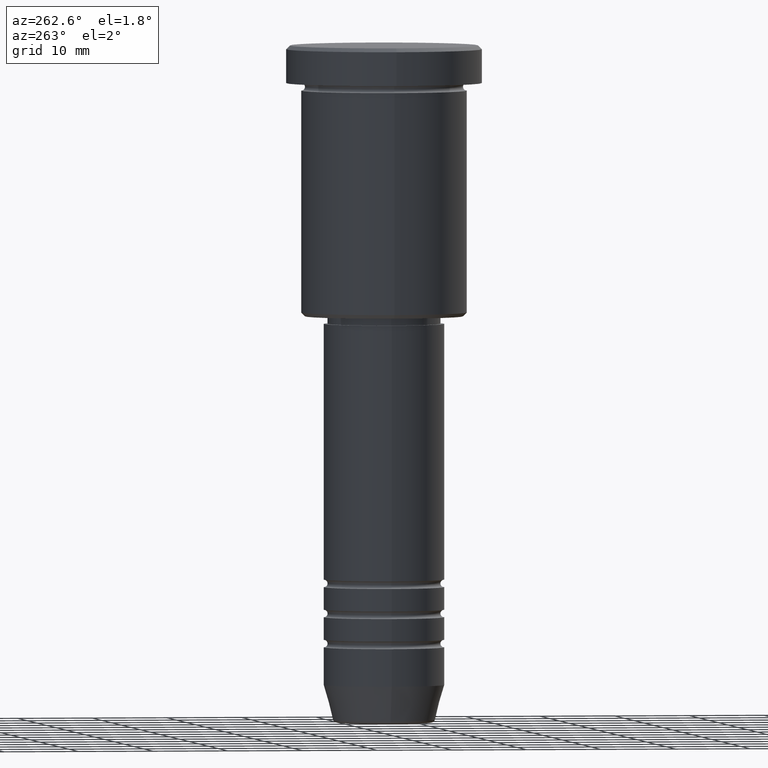
[diagram: clean part render]
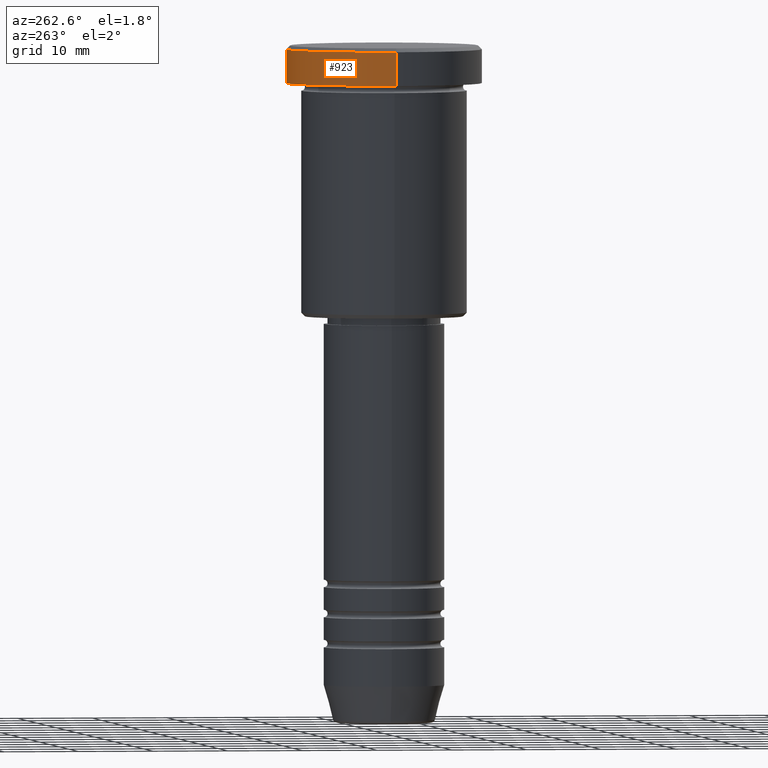
[diagram: same view with one face highlighted and labeled with its STEP entity id]
A machine part, auxiliary view. The second image highlights one B-rep face of the part: STEP entity #923.
In plain terms, the highlighted cylindrical surface (partial cylindrical patch) has radius 13 mm, axis along (-0, -0, 1).
Its self-contained STEP definition (entity closure, byte-faithful):
#2 = AXIS2_PLACEMENT_3D ( 'NONE', #1120, #1019, #1010 ) ;
#35 = CARTESIAN_POINT ( 'NONE',  ( -13.00000000000000000, 1.592040838891559095E-15, -5.000000000000000000 ) ) ;
#54 = DIRECTION ( 'NONE',  ( 1.000000000000000000, 0.000000000000000000, 0.000000000000000000 ) ) ;
#65 = DIRECTION ( 'NONE',  ( -0.000000000000000000, -0.000000000000000000, 1.000000000000000000 ) ) ;
#98 = CIRCLE ( 'NONE', #212, 13.00000000000000000 ) ;
#105 = EDGE_CURVE ( 'NONE', #774, #221, #555, .T. ) ;
#131 = AXIS2_PLACEMENT_3D ( 'NONE', #1119, #959, #135 ) ;
#135 = DIRECTION ( 'NONE',  ( 1.000000000000000000, 0.000000000000000000, 0.000000000000000000 ) ) ;
#169 = LINE ( 'NONE', #499, #177 ) ;
#177 = VECTOR ( 'NONE', #871, 1000.000000000000000 ) ;
#212 = AXIS2_PLACEMENT_3D ( 'NONE', #492, #360, #54 ) ;
#221 = VERTEX_POINT ( 'NONE', #727 ) ;
#266 = ORIENTED_EDGE ( 'NONE', *, *, #1046, .T. ) ;
#339 = VERTEX_POINT ( 'NONE', #35 ) ;
#360 = DIRECTION ( 'NONE',  ( -0.000000000000000000, -0.000000000000000000, 1.000000000000000000 ) ) ;
#415 = CARTESIAN_POINT ( 'NONE',  ( -13.00000000000000000, 1.592040838891559095E-15, 0.000000000000000000 ) ) ;
#476 = VERTEX_POINT ( 'NONE', #586 ) ;
#492 = CARTESIAN_POINT ( 'NONE',  ( 0.000000000000000000, 0.000000000000000000, -5.000000000000000000 ) ) ;
#499 = CARTESIAN_POINT ( 'NONE',  ( 13.00000000000000000, 0.000000000000000000, 0.000000000000000000 ) ) ;
#555 = CIRCLE ( 'NONE', #2, 13.00000000000000000 ) ;
#569 = EDGE_CURVE ( 'NONE', #476, #221, #169, .T. ) ;
#586 = CARTESIAN_POINT ( 'NONE',  ( 13.00000000000000000, 0.000000000000000000, -5.000000000000000000 ) ) ;
#670 = FACE_OUTER_BOUND ( 'NONE', #695, .T. ) ;
#695 = EDGE_LOOP ( 'NONE', ( #266, #1104, #906, #1156 ) ) ;
#727 = CARTESIAN_POINT ( 'NONE',  ( 13.00000000000000000, 0.000000000000000000, -0.5000000000000073275 ) ) ;
#774 = VERTEX_POINT ( 'NONE', #801 ) ;
#801 = CARTESIAN_POINT ( 'NONE',  ( -13.00000000000000000, 1.592040838891559095E-15, -0.5000000000000073275 ) ) ;
#871 = DIRECTION ( 'NONE',  ( -0.000000000000000000, -0.000000000000000000, 1.000000000000000000 ) ) ;
#902 = LINE ( 'NONE', #415, #957 ) ;
#906 = ORIENTED_EDGE ( 'NONE', *, *, #105, .T. ) ;
#923 = ADVANCED_FACE ( 'NONE', ( #670 ), #949, .T. ) ;
#949 = CYLINDRICAL_SURFACE ( 'NONE', #131, 13.00000000000000000 ) ;
#957 = VECTOR ( 'NONE', #65, 1000.000000000000000 ) ;
#959 = DIRECTION ( 'NONE',  ( -0.000000000000000000, -0.000000000000000000, 1.000000000000000000 ) ) ;
#1010 = DIRECTION ( 'NONE',  ( 1.000000000000000000, 0.000000000000000000, 0.000000000000000000 ) ) ;
#1019 = DIRECTION ( 'NONE',  ( 0.000000000000000000, 0.000000000000000000, -1.000000000000000000 ) ) ;
#1046 = EDGE_CURVE ( 'NONE', #476, #339, #98, .T. ) ;
#1082 = EDGE_CURVE ( 'NONE', #339, #774, #902, .T. ) ;
#1104 = ORIENTED_EDGE ( 'NONE', *, *, #1082, .T. ) ;
#1119 = CARTESIAN_POINT ( 'NONE',  ( 0.000000000000000000, 0.000000000000000000, 0.000000000000000000 ) ) ;
#1120 = CARTESIAN_POINT ( 'NONE',  ( 0.000000000000000000, 0.000000000000000000, -0.5000000000000073275 ) ) ;
#1156 = ORIENTED_EDGE ( 'NONE', *, *, #569, .F. ) ;